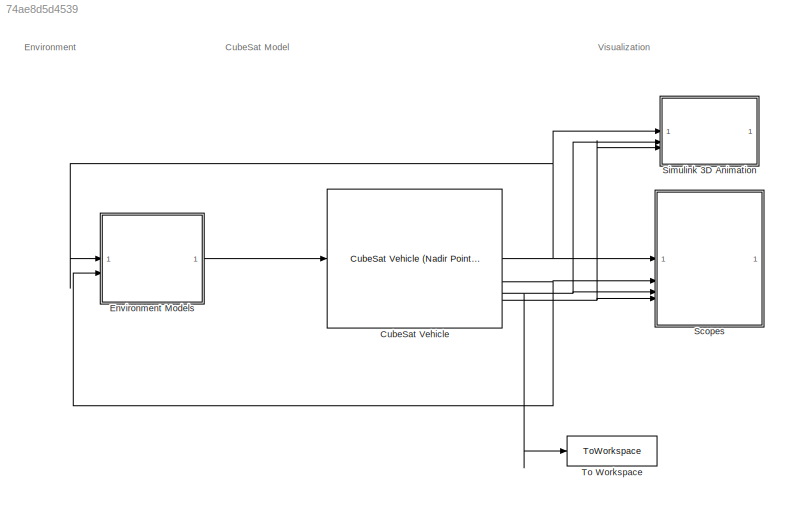
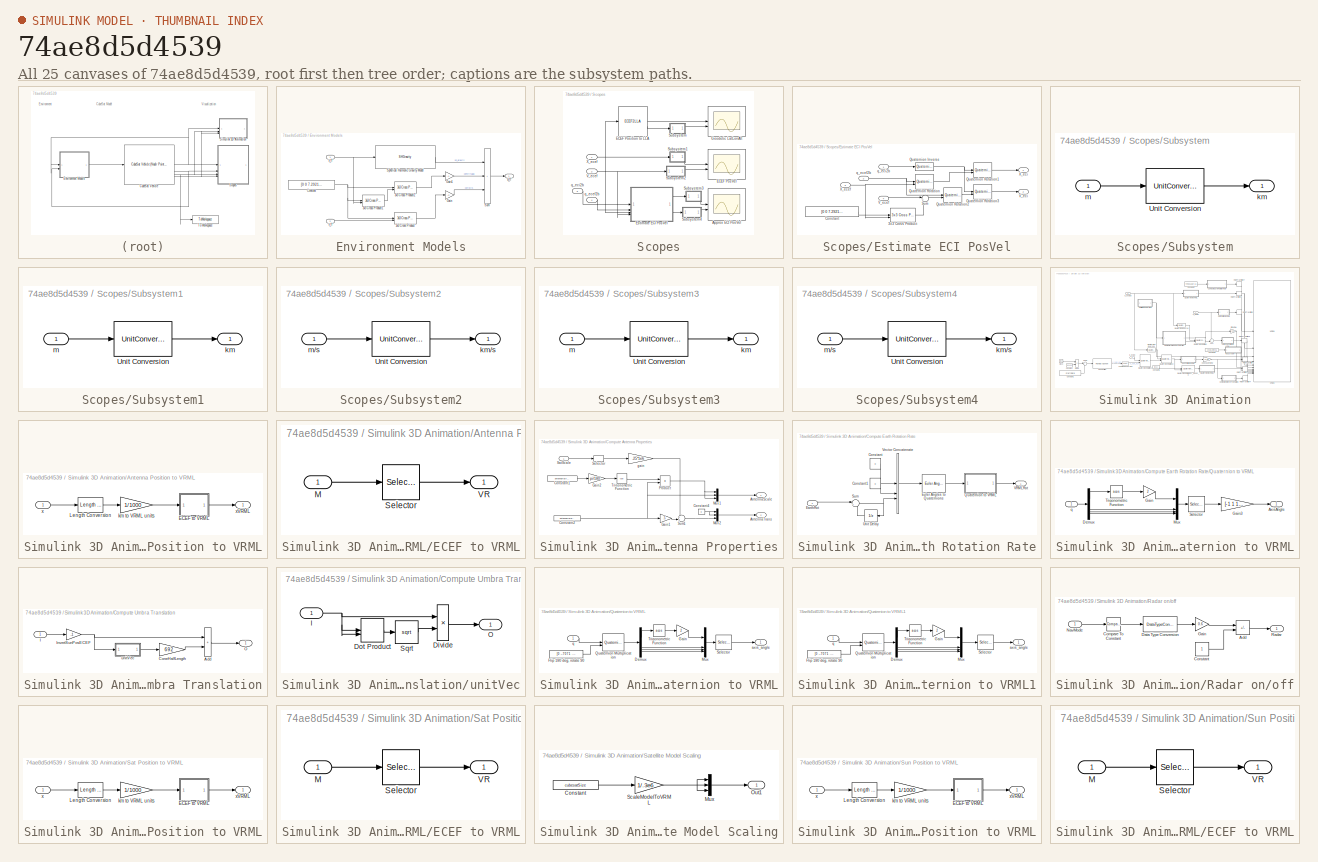
[diagram: thumbnail index - all 25 canvases of the model, root first then tree order]
MODEL slx_74ae8d5d4539
KIND model
CONFIG AbsTol = auto
CONFIG EnableMultiTasking = off
CONFIG FixedStep = auto
CONFIG MaxStep = auto
CONFIG MinStep = auto
CONFIG RelTol = 1e-3
CONFIG SampleTimeConstraint = Unconstrained
CONFIG SolverName = VariableStepAuto
CONFIG StartTime = 0.0
CONFIG StopTime = 10000
BLOCK [Reference] CubeSat Vehicle  REF=aerolibcubesatveh/CubeSat Vehicle
(Nadir Pointing)
  AttributesFormatString = %<pointingMode>
  SourceBlock = aerolibcubesatveh/CubeSat Vehicle\n(Nadir Pointing)
  SourceType = CubeSat Vehicle
BLOCK [SubSystem] Environment Models
BLOCK [Reference] Environment Models/3x3 Cross Product  REF=sharedutil/3x3 Cross Product
  SourceBlock = sharedutil/3x3 Cross Product
  SourceType = CrossProduct
BLOCK [Reference] Environment Models/3x3 Cross Product1  REF=sharedutil/3x3 Cross Product
  SourceBlock = sharedutil/3x3 Cross Product
  SourceType = CrossProduct
BLOCK [Reference] Environment Models/3x3 Cross Product2  REF=sharedutil/3x3 Cross Product
  SourceBlock = sharedutil/3x3 Cross Product
  SourceType = CrossProduct
BLOCK [Constant] Environment Models/Constant
  Value = [0 0 7.292115146706979e-5]'
BLOCK [Gain] Environment Models/Gain
  Gain = -2
BLOCK [Gain] Environment Models/Gain1
  Gain = -1
BLOCK [SHGravity] Environment Models/Spherical Harmonic Gravity Model
  degree = 40
BLOCK [Sum] Environment Models/Sum
  IconShape = rectangular
  Inputs = +++
BLOCK [Outport] Environment Models/a_ff
  PortDimensions = 3
  Unit = m/s^2
BLOCK [Inport] Environment Models/v_ff
  Port = 2
  PortDimensions = 3
  Unit = m/s
BLOCK [Inport] Environment Models/x_ff
  PortDimensions = 3
  Unit = m
BLOCK [SubSystem] Scopes
  VariantControl = visOff
BLOCK [Scope] Scopes/Approx ECI PosVel
  Floating = off
  NumInputPorts = 2
  ScopeSpecificationString = Simulink.scopes.TimeScopeBlockCfg('CurrentConfiguration', extmgr.ConfigurationSet(extmgr.Configuration('Core','General UI',true),extmgr.Configuration('Core','Source UI',true),extmgr.Configuration('Sources','WiredSimulink',true,'DataLoggingVariableName','ScopeData1'),extmgr.Configuration('Visuals','Time Domain',true,'SerializedDisplays',{struct('MinYLimReal','-8477.77229','MaxYLimReal','8481.05539'...<+2040ch>
BLOCK [Scope] Scopes/ECEF PosVel
  Floating = off
  NumInputPorts = 2
  ScopeSpecificationString = Simulink.scopes.TimeScopeBlockCfg('CurrentConfiguration', extmgr.ConfigurationSet(extmgr.Configuration('Core','General UI',true),extmgr.Configuration('Core','Source UI',true),extmgr.Configuration('Sources','WiredSimulink',true,'DataLoggingVariableName','ScopeData2'),extmgr.Configuration('Visuals','Time Domain',true,'SerializedDisplays',{struct('MinYLimReal','-8476.94488','MaxYLimReal','8445.06709'...<+2048ch>
BLOCK [ECEF2LLA] Scopes/ECEF Position to LLA
  R = 6378137
BLOCK [SubSystem] Scopes/Estimate ECI PosVel
BLOCK [Reference] Scopes/Estimate ECI PosVel/3x3 Cross Product  REF=sharedutil/3x3 Cross Product
  SourceBlock = sharedutil/3x3 Cross Product
  SourceType = CrossProduct
BLOCK [Constant] Scopes/Estimate ECI PosVel/Constant
  Value = [0 0 7.292115146706979e-5]'
BLOCK [Reference] Scopes/Estimate ECI PosVel/Quaternion Inverse  REF=aerolibutil/Quaternion
Inverse
  NameLocation = top
  SourceBlock = aerolibutil/Quaternion\nInverse
  SourceType = Quaternion Inverse
BLOCK [Reference] Scopes/Estimate ECI PosVel/Quaternion Rotation  REF=aerolibutil/Quaternion
Rotation
  SourceBlock = aerolibutil/Quaternion\nRotation
  SourceType = Quaternion Rotation
BLOCK [Reference] Scopes/Estimate ECI PosVel/Quaternion Rotation1  REF=aerolibutil/Quaternion
Rotation
  SourceBlock = aerolibutil/Quaternion\nRotation
  SourceType = Quaternion Rotation
BLOCK [Reference] Scopes/Estimate ECI PosVel/Quaternion Rotation2  REF=aerolibutil/Quaternion
Rotation
  SourceBlock = aerolibutil/Quaternion\nRotation
  SourceType = Quaternion Rotation
BLOCK [Reference] Scopes/Estimate ECI PosVel/Quaternion Rotation3  REF=aerolibutil/Quaternion
Rotation
  SourceBlock = aerolibutil/Quaternion\nRotation
  SourceType = Quaternion Rotation
BLOCK [Sum] Scopes/Estimate ECI PosVel/Sum
  Inputs = |++
BLOCK [Inport] Scopes/Estimate ECI PosVel/V_ecef
  Port = 4
BLOCK [Outport] Scopes/Estimate ECI PosVel/V_eci
  Port = 2
  VectorParamsAs1DForOutWhenUnconnected = off
BLOCK [Inport] Scopes/Estimate ECI PosVel/X_ecef
  Port = 3
BLOCK [Outport] Scopes/Estimate ECI PosVel/X_eci
  VectorParamsAs1DForOutWhenUnconnected = off
BLOCK [Inport] Scopes/Estimate ECI PosVel/q_ecef2b
  NameLocation = top
  Port = 2
BLOCK [Inport] Scopes/Estimate ECI PosVel/q_eci2b
BLOCK [Scope] Scopes/Geodetic LatLonAlt
  Floating = off
  NumInputPorts = 2
  ScopeSpecificationString = Simulink.scopes.TimeScopeBlockCfg('CurrentConfiguration', extmgr.ConfigurationSet(extmgr.Configuration('Core','General UI',true),extmgr.Configuration('Core','Source UI',true),extmgr.Configuration('Sources','WiredSimulink',true),extmgr.Configuration('Visuals','Time Domain',true,'SerializedDisplays',{struct('MinYLimReal','-224.99627','MaxYLimReal','224.98953','YLabelReal','\mu \iota (deg)','MinYLimM...<+1990ch>
BLOCK [SubSystem] Scopes/Subsystem
BLOCK [UnitConversion] Scopes/Subsystem/Unit Conversion
BLOCK [Outport] Scopes/Subsystem/km
  Unit = km
  VectorParamsAs1DForOutWhenUnconnected = off
BLOCK [Inport] Scopes/Subsystem/m
  Unit = m
BLOCK [SubSystem] Scopes/Subsystem1
BLOCK [UnitConversion] Scopes/Subsystem1/Unit Conversion
BLOCK [Outport] Scopes/Subsystem1/km
  Unit = km
  VectorParamsAs1DForOutWhenUnconnected = off
BLOCK [Inport] Scopes/Subsystem1/m
  Unit = m
BLOCK [SubSystem] Scopes/Subsystem2
BLOCK [UnitConversion] Scopes/Subsystem2/Unit Conversion
BLOCK [Outport] Scopes/Subsystem2/km//s
  Unit = km/s
  VectorParamsAs1DForOutWhenUnconnected = off
BLOCK [Inport] Scopes/Subsystem2/m//s
  Unit = m/s
BLOCK [SubSystem] Scopes/Subsystem3
BLOCK [UnitConversion] Scopes/Subsystem3/Unit Conversion
BLOCK [Outport] Scopes/Subsystem3/km
  Unit = km
  VectorParamsAs1DForOutWhenUnconnected = off
BLOCK [Inport] Scopes/Subsystem3/m
  Unit = m
BLOCK [SubSystem] Scopes/Subsystem4
BLOCK [UnitConversion] Scopes/Subsystem4/Unit Conversion
BLOCK [Outport] Scopes/Subsystem4/km//s
  Unit = km/s
  VectorParamsAs1DForOutWhenUnconnected = off
BLOCK [Inport] Scopes/Subsystem4/m//s
  Unit = m/s
BLOCK [Inport] Scopes/V_ecef
  Port = 2
BLOCK [Inport] Scopes/X_ecef
BLOCK [Inport] Scopes/q_ecef2b
  Port = 4
BLOCK [Inport] Scopes/q_eci2b
  Port = 3
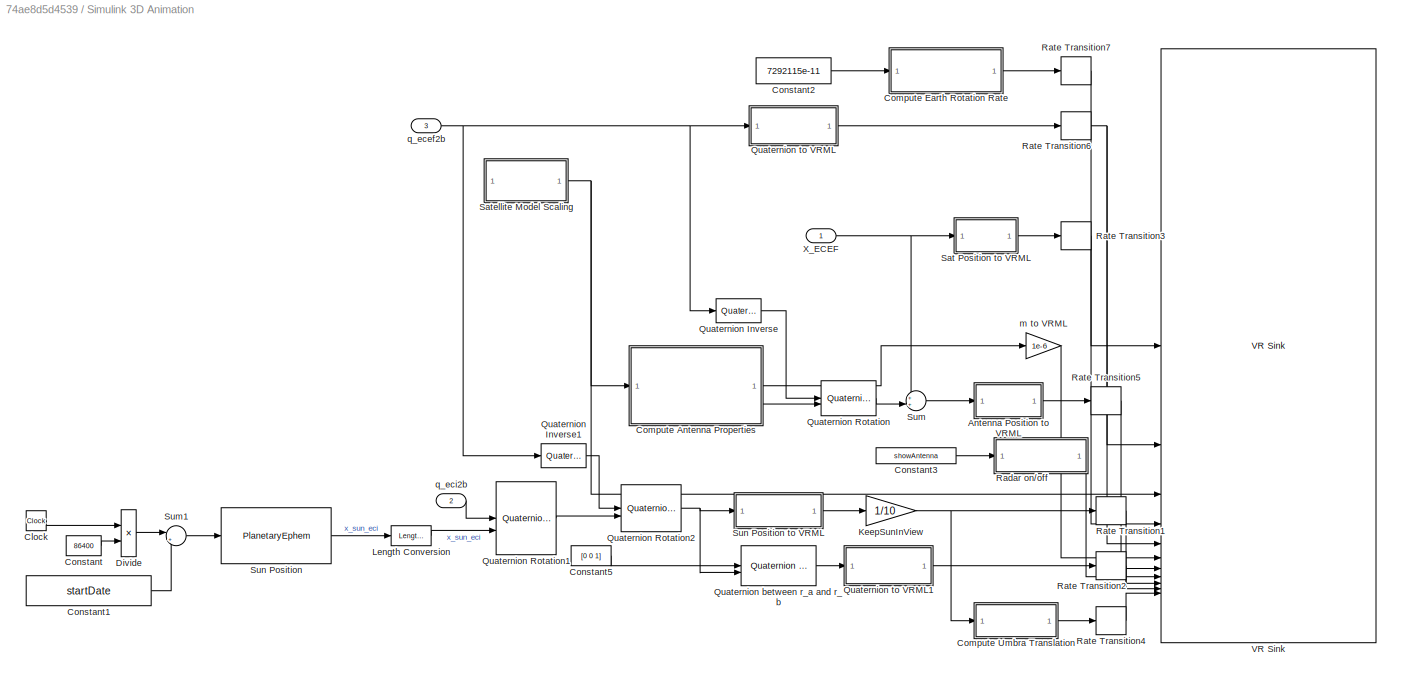
BLOCK [SubSystem] Simulink 3D Animation
  OpenFcn = if ~builtin('license','test','virtual_reality_toolbox')\n    set_param(gcb, 'enableVis', 'off');\nend\nopen_system(gcb,'mask');
BLOCK [SubSystem] Simulink 3D Animation/Antenna Position to VRML
BLOCK [SubSystem] Simulink 3D Animation/Antenna Position to VRML/ECEF to VRML
BLOCK [Inport] Simulink 3D Animation/Antenna Position to VRML/ECEF to VRML/M
  PortDimensions = 3
BLOCK [Selector] Simulink 3D Animation/Antenna Position to VRML/ECEF to VRML/Selector
  IndexOptions = Index vector (dialog)
  Indices = [2 3 1]
  InputPortWidth = 3
  OutputSizes = 1
BLOCK [Outport] Simulink 3D Animation/Antenna Position to VRML/ECEF to VRML/VR
  PortDimensions = 3
  VectorParamsAs1DForOutWhenUnconnected = off
BLOCK [Reference] Simulink 3D Animation/Antenna Position to VRML/Length Conversion  REF=aerolibconvert2/Length Conversion
  SourceBlock = aerolibconvert2/Length Conversion
  SourceType = Length Conversion
BLOCK [Gain] Simulink 3D Animation/Antenna Position to VRML/km to VRML units
  Gain = 1/1000
BLOCK [Inport] Simulink 3D Animation/Antenna Position to VRML/x
BLOCK [Outport] Simulink 3D Animation/Antenna Position to VRML/xVRML
  VectorParamsAs1DForOutWhenUnconnected = off
BLOCK [Clock] Simulink 3D Animation/Clock
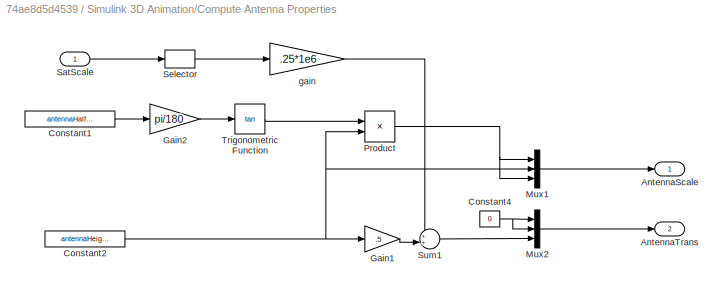
BLOCK [SubSystem] Simulink 3D Animation/Compute Antenna Properties
BLOCK [Outport] Simulink 3D Animation/Compute Antenna Properties/AntennaScale
  VectorParamsAs1DForOutWhenUnconnected = off
BLOCK [Outport] Simulink 3D Animation/Compute Antenna Properties/AntennaTrans
  Port = 2
  VectorParamsAs1DForOutWhenUnconnected = off
BLOCK [Constant] Simulink 3D Animation/Compute Antenna Properties/Constant1
  Value = antennaHalfAngle
BLOCK [Constant] Simulink 3D Animation/Compute Antenna Properties/Constant2
  Value = antennaHeight
BLOCK [Constant] Simulink 3D Animation/Compute Antenna Properties/Constant4
  Value = 0
BLOCK [Gain] Simulink 3D Animation/Compute Antenna Properties/Gain1
  Gain = .5
BLOCK [Gain] Simulink 3D Animation/Compute Antenna Properties/Gain2
  Gain = pi/180
BLOCK [Mux] Simulink 3D Animation/Compute Antenna Properties/Mux1
  DisplayOption = bar
  Inputs = 3
BLOCK [Mux] Simulink 3D Animation/Compute Antenna Properties/Mux2
  DisplayOption = bar
  Inputs = 3
BLOCK [Product] Simulink 3D Animation/Compute Antenna Properties/Product
BLOCK [Inport] Simulink 3D Animation/Compute Antenna Properties/SatScale
BLOCK [Selector] Simulink 3D Animation/Compute Antenna Properties/Selector
  IndexOptions = Index vector (dialog)
  Indices = 1
  InputPortWidth = 3
  OutputSizes = 1
BLOCK [Sum] Simulink 3D Animation/Compute Antenna Properties/Sum1
  Inputs = ++|
BLOCK [Trigonometry] Simulink 3D Animation/Compute Antenna Properties/Trigonometric Function
  Operator = tan
BLOCK [Gain] Simulink 3D Animation/Compute Antenna Properties/gain
  Gain = .25*1e6
BLOCK [SubSystem] Simulink 3D Animation/Compute Earth Rotation Rate
BLOCK [Constant] Simulink 3D Animation/Compute Earth Rotation Rate/Constant
  Value = 0
BLOCK [Constant] Simulink 3D Animation/Compute Earth Rotation Rate/Constant1
  Value = 0
BLOCK [Inport] Simulink 3D Animation/Compute Earth Rotation Rate/EarthRot
BLOCK [Reference] Simulink 3D Animation/Compute Earth Rotation Rate/Euler Angles to Quaternions  REF=aerolibobsolete/Euler Angles to Quaternions
  SourceBlock = aerolibobsolete/Euler Angles to Quaternions
  SourceType = Euler2Quaternion
BLOCK [SubSystem] Simulink 3D Animation/Compute Earth Rotation Rate/Quaternion to VRML
BLOCK [Outport] Simulink 3D Animation/Compute Earth Rotation Rate/Quaternion to VRML/AxisAngle
  VectorParamsAs1DForOutWhenUnconnected = off
BLOCK [Demux] Simulink 3D Animation/Compute Earth Rotation Rate/Quaternion to VRML/Demux
BLOCK [Gain] Simulink 3D Animation/Compute Earth Rotation Rate/Quaternion to VRML/Gain
  Gain = 2
BLOCK [Gain] Simulink 3D Animation/Compute Earth Rotation Rate/Quaternion to VRML/Gain3
  Gain = [-1 1 1 1]
BLOCK [Mux] Simulink 3D Animation/Compute Earth Rotation Rate/Quaternion to VRML/Mux
  DisplayOption = bar
BLOCK [Selector] Simulink 3D Animation/Compute Earth Rotation Rate/Quaternion to VRML/Selector
  IndexOptions = Index vector (dialog)
  Indices = [2 4 3 1]
  InputPortWidth = 4
  OutputSizes = 1
BLOCK [Trigonometry] Simulink 3D Animation/Compute Earth Rotation Rate/Quaternion to VRML/Trigonometric Function
  Operator = acos
BLOCK [Inport] Simulink 3D Animation/Compute Earth Rotation Rate/Quaternion to VRML/q
BLOCK [Sum] Simulink 3D Animation/Compute Earth Rotation Rate/Sum
  Inputs = |++
BLOCK [UnitDelay] Simulink 3D Animation/Compute Earth Rotation Rate/Unit Delay
  HasFrameUpgradeWarning = on
  SampleTime = -1
BLOCK [Outport] Simulink 3D Animation/Compute Earth Rotation Rate/VRMLRot
  VectorParamsAs1DForOutWhenUnconnected = off
BLOCK [Concatenate] Simulink 3D Animation/Compute Earth Rotation Rate/Vector Concatenate
  NumInputs = 3
BLOCK [SubSystem] Simulink 3D Animation/Compute Umbra Translation
BLOCK [Sum] Simulink 3D Animation/Compute Umbra Translation/Add
  IconShape = rectangular
BLOCK [Gain] Simulink 3D Animation/Compute Umbra Translation/ConeHalfLength
  Gain = 692
BLOCK [Inport] Simulink 3D Animation/Compute Umbra Translation/I
BLOCK [Gain] Simulink 3D Animation/Compute Umbra Translation/InvertSunPosECEF
  Gain = -1
BLOCK [Outport] Simulink 3D Animation/Compute Umbra Translation/O
  VectorParamsAs1DForOutWhenUnconnected = off
BLOCK [SubSystem] Simulink 3D Animation/Compute Umbra Translation/unitVec
BLOCK [Product] Simulink 3D Animation/Compute Umbra Translation/unitVec/Divide
  Inputs = */
BLOCK [DotProduct] Simulink 3D Animation/Compute Umbra Translation/unitVec/Dot Product
  OutDataTypeStr = Inherit: Inherit via internal rule
BLOCK [Inport] Simulink 3D Animation/Compute Umbra Translation/unitVec/I
BLOCK [Outport] Simulink 3D Animation/Compute Umbra Translation/unitVec/O
  VectorParamsAs1DForOutWhenUnconnected = off
BLOCK [Sqrt] Simulink 3D Animation/Compute Umbra Translation/unitVec/Sqrt
BLOCK [Constant] Simulink 3D Animation/Constant
  Value = 86400
BLOCK [Constant] Simulink 3D Animation/Constant1
  SampleTime = visSampleTime
  Value = startDate
BLOCK [Constant] Simulink 3D Animation/Constant2
  Value = 7292115e-11
BLOCK [Constant] Simulink 3D Animation/Constant3
  Value = showAntenna
BLOCK [Constant] Simulink 3D Animation/Constant5
  Value = [0 0 1]
BLOCK [Product] Simulink 3D Animation/Divide
  Inputs = */
BLOCK [Gain] Simulink 3D Animation/KeepSunInView
  Gain = 1/10
BLOCK [Reference] Simulink 3D Animation/Length Conversion  REF=aerolibconvert2/Length Conversion
  SourceBlock = aerolibconvert2/Length Conversion
  SourceType = Length Conversion
BLOCK [Reference] Simulink 3D Animation/Quaternion Inverse  REF=aerolibutil/Quaternion
Inverse
  SourceBlock = aerolibutil/Quaternion\nInverse
  SourceType = Quaternion Inverse
BLOCK [Reference] Simulink 3D Animation/Quaternion Inverse1  REF=aerolibutil/Quaternion
Inverse
  SourceBlock = aerolibutil/Quaternion\nInverse
  SourceType = Quaternion Inverse
BLOCK [Reference] Simulink 3D Animation/Quaternion Rotation  REF=aerolibutil/Quaternion
Rotation
  SourceBlock = aerolibutil/Quaternion\nRotation
  SourceType = Quaternion Rotation
BLOCK [Reference] Simulink 3D Animation/Quaternion Rotation1  REF=aerolibutil/Quaternion
Rotation
  SourceBlock = aerolibutil/Quaternion\nRotation
  SourceType = Quaternion Rotation
BLOCK [Reference] Simulink 3D Animation/Quaternion Rotation2  REF=aerolibutil/Quaternion
Rotation
  SourceBlock = aerolibutil/Quaternion\nRotation
  SourceType = Quaternion Rotation
BLOCK [Reference] Simulink 3D Animation/Quaternion between r_a and r_b  REF=aerolibattitudesys/Quaternion between
vectors
  SourceBlock = aerolibattitudesys/Quaternion between\nvectors
  SourceType = Calculate quaternion between vectors
BLOCK [SubSystem] Simulink 3D Animation/Quaternion to VRML
BLOCK [Demux] Simulink 3D Animation/Quaternion to VRML/Demux
BLOCK [Constant] Simulink 3D Animation/Quaternion to VRML/Flip 180 deg, rotate 90
  Value = [0 -.7071 .7071 0]
BLOCK [Gain] Simulink 3D Animation/Quaternion to VRML/Gain
  Gain = 2
BLOCK [Mux] Simulink 3D Animation/Quaternion to VRML/Mux
  DisplayOption = bar
BLOCK [Reference] Simulink 3D Animation/Quaternion to VRML/Quaternion Multiplication  REF=aerolibutil/Quaternion
Multiplication
  SourceBlock = aerolibutil/Quaternion\nMultiplication
  SourceType = Quaternion Multiplication
BLOCK [Selector] Simulink 3D Animation/Quaternion to VRML/Selector
  IndexOptions = Index vector (dialog)
  Indices = [3 4 2 1]
  InputPortWidth = 4
  OutputSizes = 1
BLOCK [Trigonometry] Simulink 3D Animation/Quaternion to VRML/Trigonometric Function
  Operator = acos
BLOCK [Outport] Simulink 3D Animation/Quaternion to VRML/axis_angle
  VectorParamsAs1DForOutWhenUnconnected = off
BLOCK [Inport] Simulink 3D Animation/Quaternion to VRML/q
BLOCK [SubSystem] Simulink 3D Animation/Quaternion to VRML1
BLOCK [Demux] Simulink 3D Animation/Quaternion to VRML1/Demux
BLOCK [Constant] Simulink 3D Animation/Quaternion to VRML1/Flip 180 deg, rotate 90
  Value = [0 -.7071 .7071 0]
BLOCK [Gain] Simulink 3D Animation/Quaternion to VRML1/Gain
  Gain = 2
BLOCK [Mux] Simulink 3D Animation/Quaternion to VRML1/Mux
  DisplayOption = bar
BLOCK [Reference] Simulink 3D Animation/Quaternion to VRML1/Quaternion Multiplication  REF=aerolibutil/Quaternion
Multiplication
  SourceBlock = aerolibutil/Quaternion\nMultiplication
  SourceType = Quaternion Multiplication
BLOCK [Selector] Simulink 3D Animation/Quaternion to VRML1/Selector
  IndexOptions = Index vector (dialog)
  Indices = [3 4 2 1]
  InputPortWidth = 4
  OutputSizes = 1
BLOCK [Trigonometry] Simulink 3D Animation/Quaternion to VRML1/Trigonometric Function
  Operator = acos
BLOCK [Outport] Simulink 3D Animation/Quaternion to VRML1/axis_angle
  VectorParamsAs1DForOutWhenUnconnected = off
BLOCK [Inport] Simulink 3D Animation/Quaternion to VRML1/q
BLOCK [SubSystem] Simulink 3D Animation/Radar on//off
BLOCK [Sum] Simulink 3D Animation/Radar on//off/Add
  IconShape = rectangular
  Inputs = -+
BLOCK [Reference] Simulink 3D Animation/Radar on//off/Compare To Constant  REF=simulink/Logic and Bit
Operations/Compare
To Constant
  SourceBlock = simulink/Logic and Bit\nOperations/Compare\nTo Constant
  SourceType = Compare To Constant
BLOCK [Constant] Simulink 3D Animation/Radar on//off/Constant
BLOCK [DataTypeConversion] Simulink 3D Animation/Radar on//off/Data Type Conversion
  OutDataTypeStr = double
  RndMeth = Floor
  SaturateOnIntegerOverflow = off
BLOCK [Gain] Simulink 3D Animation/Radar on//off/Gain
  Gain = 0.6
BLOCK [Inport] Simulink 3D Animation/Radar on//off/NavMode
BLOCK [Outport] Simulink 3D Animation/Radar on//off/Radar
  VectorParamsAs1DForOutWhenUnconnected = off
BLOCK [RateTransition] Simulink 3D Animation/Rate Transition1
BLOCK [RateTransition] Simulink 3D Animation/Rate Transition2
BLOCK [RateTransition] Simulink 3D Animation/Rate Transition3
BLOCK [RateTransition] Simulink 3D Animation/Rate Transition4
BLOCK [RateTransition] Simulink 3D Animation/Rate Transition5
BLOCK [RateTransition] Simulink 3D Animation/Rate Transition6
BLOCK [RateTransition] Simulink 3D Animation/Rate Transition7
BLOCK [SubSystem] Simulink 3D Animation/Sat Position to VRML
BLOCK [SubSystem] Simulink 3D Animation/Sat Position to VRML/ECEF to VRML
BLOCK [Inport] Simulink 3D Animation/Sat Position to VRML/ECEF to VRML/M
  PortDimensions = 3
BLOCK [Selector] Simulink 3D Animation/Sat Position to VRML/ECEF to VRML/Selector
  IndexOptions = Index vector (dialog)
  Indices = [2 3 1]
  InputPortWidth = 3
  OutputSizes = 1
BLOCK [Outport] Simulink 3D Animation/Sat Position to VRML/ECEF to VRML/VR
  PortDimensions = 3
  VectorParamsAs1DForOutWhenUnconnected = off
BLOCK [Reference] Simulink 3D Animation/Sat Position to VRML/Length Conversion  REF=aerolibconvert2/Length Conversion
  SourceBlock = aerolibconvert2/Length Conversion
  SourceType = Length Conversion
BLOCK [Gain] Simulink 3D Animation/Sat Position to VRML/km to VRML units
  Gain = 1/1000
BLOCK [Inport] Simulink 3D Animation/Sat Position to VRML/x
BLOCK [Outport] Simulink 3D Animation/Sat Position to VRML/xVRML
  VectorParamsAs1DForOutWhenUnconnected = off
BLOCK [SubSystem] Simulink 3D Animation/Satellite Model Scaling
BLOCK [Constant] Simulink 3D Animation/Satellite Model Scaling/Constant
  Value = cubesatSize
BLOCK [Mux] Simulink 3D Animation/Satellite Model Scaling/Mux
  DisplayOption = bar
  Inputs = 3
BLOCK [Outport] Simulink 3D Animation/Satellite Model Scaling/Out1
  VectorParamsAs1DForOutWhenUnconnected = off
BLOCK [Gain] Simulink 3D Animation/Satellite Model Scaling/ScaleModelToVRML
  Gain = 1/.3e6
BLOCK [Sum] Simulink 3D Animation/Sum
  Inputs = ++|
BLOCK [Sum] Simulink 3D Animation/Sum1
  Inputs = |++
BLOCK [PlanetaryEphem] Simulink 3D Animation/Sun Position
  ephemerisModel = DE421
  outputVelocity = off
  target = Sun
BLOCK [SubSystem] Simulink 3D Animation/Sun Position to VRML
BLOCK [SubSystem] Simulink 3D Animation/Sun Position to VRML/ECEF to VRML
BLOCK [Inport] Simulink 3D Animation/Sun Position to VRML/ECEF to VRML/M
  PortDimensions = 3
BLOCK [Selector] Simulink 3D Animation/Sun Position to VRML/ECEF to VRML/Selector
  IndexOptions = Index vector (dialog)
  Indices = [2 3 1]
  InputPortWidth = 3
  OutputSizes = 1
BLOCK [Outport] Simulink 3D Animation/Sun Position to VRML/ECEF to VRML/VR
  PortDimensions = 3
  VectorParamsAs1DForOutWhenUnconnected = off
BLOCK [Reference] Simulink 3D Animation/Sun Position to VRML/Length Conversion  REF=aerolibconvert2/Length Conversion
  SourceBlock = aerolibconvert2/Length Conversion
  SourceType = Length Conversion
BLOCK [Gain] Simulink 3D Animation/Sun Position to VRML/km to VRML units
  Gain = 1/1000
BLOCK [Inport] Simulink 3D Animation/Sun Position to VRML/x
BLOCK [Outport] Simulink 3D Animation/Sun Position to VRML/xVRML
  VectorParamsAs1DForOutWhenUnconnected = off
BLOCK [Reference] Simulink 3D Animation/VR Sink  REF=vrlib/VR Sink
  InstantiateOnLoad = on
  SourceBlock = vrlib/VR Sink
  SourceType = Virtual Reality Sink
BLOCK [Inport] Simulink 3D Animation/X_ECEF
BLOCK [Gain] Simulink 3D Animation/m to VRML
  Gain = 1e-6
BLOCK [Inport] Simulink 3D Animation/q_ecef2b
  Port = 3
BLOCK [Inport] Simulink 3D Animation/q_eci2b
  Port = 2
BLOCK [ToWorkspace] To Workspace
  FixptAsFi = on
  MaxDataPoints = inf
  SampleTime = 1
  SaveFormat = Timeseries
  VariableName = q_ECI2Body
ANNOTATION (root): CubeSat Model
ANNOTATION (root): Environment
ANNOTATION (root): Visualization
NET CubeSat Vehicle:1 -> Environment Models:1, Scopes:1, Simulink 3D Animation:1
NET CubeSat Vehicle:2 -> Environment Models:2, Scopes:2
NET CubeSat Vehicle:3 -> Scopes:3, Simulink 3D Animation:2, To Workspace:1
NET CubeSat Vehicle:4 -> Scopes:4, Simulink 3D Animation:3
LINE Environment Models/3x3 Cross Product1:1 -> Environment Models/3x3 Cross Product2:2
LINE Environment Models/3x3 Cross Product2:1 -> Environment Models/Gain1:1
LINE Environment Models/3x3 Cross Product:1 -> Environment Models/Gain:1
NET Environment Models/Constant:1 -> Environment Models/3x3 Cross Product1:1, Environment Models/3x3 Cross Product2:1, Environment Models/3x3 Cross Product:1
LINE Environment Models/Gain1:1 -> Environment Models/Sum:2
LINE Environment Models/Gain:1 -> Environment Models/Sum:3
LINE Environment Models/Spherical Harmonic Gravity Model:1 -> Environment Models/Sum:1
LINE Environment Models/Sum:1 -> Environment Models/a_ff:1
LINE Environment Models/v_ff:1 -> Environment Models/3x3 Cross Product:2
NET Environment Models/x_ff:1 -> Environment Models/3x3 Cross Product1:2, Environment Models/Spherical Harmonic Gravity Model:1
LINE Environment Models:1 -> CubeSat Vehicle:1
LINE Scopes/ECEF Position to LLA:1 -> Scopes/Geodetic LatLonAlt:1
LINE Scopes/ECEF Position to LLA:2 -> Scopes/Subsystem:1
LINE Scopes/Estimate ECI PosVel/3x3 Cross Product:1 -> Scopes/Estimate ECI PosVel/Sum:2
LINE Scopes/Estimate ECI PosVel/Constant:1 -> Scopes/Estimate ECI PosVel/3x3 Cross Product:1
NET Scopes/Estimate ECI PosVel/Quaternion Inverse:1 -> Scopes/Estimate ECI PosVel/Quaternion Rotation1:1, Scopes/Estimate ECI PosVel/Quaternion Rotation3:1
LINE Scopes/Estimate ECI PosVel/Quaternion Rotation1:1 -> Scopes/Estimate ECI PosVel/X_eci:1
LINE Scopes/Estimate ECI PosVel/Quaternion Rotation2:1 -> Scopes/Estimate ECI PosVel/Quaternion Rotation3:2
LINE Scopes/Estimate ECI PosVel/Quaternion Rotation3:1 -> Scopes/Estimate ECI PosVel/V_eci:1
LINE Scopes/Estimate ECI PosVel/Quaternion Rotation:1 -> Scopes/Estimate ECI PosVel/Quaternion Rotation1:2
LINE Scopes/Estimate ECI PosVel/Sum:1 -> Scopes/Estimate ECI PosVel/Quaternion Rotation2:2
LINE Scopes/Estimate ECI PosVel/V_ecef:1 -> Scopes/Estimate ECI PosVel/Sum:1
NET Scopes/Estimate ECI PosVel/X_ecef:1 -> Scopes/Estimate ECI PosVel/3x3 Cross Product:2, Scopes/Estimate ECI PosVel/Quaternion Rotation:2
NET Scopes/Estimate ECI PosVel/q_ecef2b:1 -> Scopes/Estimate ECI PosVel/Quaternion Rotation2:1, Scopes/Estimate ECI PosVel/Quaternion Rotation:1
LINE Scopes/Estimate ECI PosVel/q_eci2b:1 -> Scopes/Estimate ECI PosVel/Quaternion Inverse:1
LINE Scopes/Estimate ECI PosVel:1 -> Scopes/Subsystem3:1
LINE Scopes/Estimate ECI PosVel:2 -> Scopes/Subsystem4:1
LINE Scopes/Subsystem/Unit Conversion:1 -> Scopes/Subsystem/km:1
LINE Scopes/Subsystem/m:1 -> Scopes/Subsystem/Unit Conversion:1
LINE Scopes/Subsystem1/Unit Conversion:1 -> Scopes/Subsystem1/km:1
LINE Scopes/Subsystem1/m:1 -> Scopes/Subsystem1/Unit Conversion:1
LINE Scopes/Subsystem1:1 -> Scopes/ECEF PosVel:1
LINE Scopes/Subsystem2/Unit Conversion:1 -> Scopes/Subsystem2/km//s:1
LINE Scopes/Subsystem2/m//s:1 -> Scopes/Subsystem2/Unit Conversion:1
LINE Scopes/Subsystem2:1 -> Scopes/ECEF PosVel:2
LINE Scopes/Subsystem3/Unit Conversion:1 -> Scopes/Subsystem3/km:1
LINE Scopes/Subsystem3/m:1 -> Scopes/Subsystem3/Unit Conversion:1
LINE Scopes/Subsystem3:1 -> Scopes/Approx ECI PosVel:1
LINE Scopes/Subsystem4/Unit Conversion:1 -> Scopes/Subsystem4/km//s:1
LINE Scopes/Subsystem4/m//s:1 -> Scopes/Subsystem4/Unit Conversion:1
LINE Scopes/Subsystem4:1 -> Scopes/Approx ECI PosVel:2
LINE Scopes/Subsystem:1 -> Scopes/Geodetic LatLonAlt:2
NET Scopes/V_ecef:1 -> Scopes/Estimate ECI PosVel:4, Scopes/Subsystem2:1
NET Scopes/X_ecef:1 -> Scopes/ECEF Position to LLA:1, Scopes/Estimate ECI PosVel:3, Scopes/Subsystem1:1
LINE Scopes/q_ecef2b:1 -> Scopes/Estimate ECI PosVel:2
LINE Scopes/q_eci2b:1 -> Scopes/Estimate ECI PosVel:1
LINE Simulink 3D Animation/Antenna Position to VRML/ECEF to VRML/M:1 -> Simulink 3D Animation/Antenna Position to VRML/ECEF to VRML/Selector:1
LINE Simulink 3D Animation/Antenna Position to VRML/ECEF to VRML/Selector:1 -> Simulink 3D Animation/Antenna Position to VRML/ECEF to VRML/VR:1
LINE Simulink 3D Animation/Antenna Position to VRML/ECEF to VRML:1 -> Simulink 3D Animation/Antenna Position to VRML/xVRML:1
LINE Simulink 3D Animation/Antenna Position to VRML/Length Conversion:1 -> Simulink 3D Animation/Antenna Position to VRML/km to VRML units:1
LINE Simulink 3D Animation/Antenna Position to VRML/km to VRML units:1 -> Simulink 3D Animation/Antenna Position to VRML/ECEF to VRML:1
LINE Simulink 3D Animation/Antenna Position to VRML/x:1 -> Simulink 3D Animation/Antenna Position to VRML/Length Conversion:1
LINE Simulink 3D Animation/Antenna Position to VRML:1 -> Simulink 3D Animation/Rate Transition5:1
LINE Simulink 3D Animation/Clock:1 -> Simulink 3D Animation/Divide:1
LINE Simulink 3D Animation/Compute Antenna Properties/Constant1:1 -> Simulink 3D Animation/Compute Antenna Properties/Gain2:1
NET Simulink 3D Animation/Compute Antenna Properties/Constant2:1 -> Simulink 3D Animation/Compute Antenna Properties/Gain1:1, Simulink 3D Animation/Compute Antenna Properties/Mux1:2, Simulink 3D Animation/Compute Antenna Properties/Product:2
NET Simulink 3D Animation/Compute Antenna Properties/Constant4:1 -> Simulink 3D Animation/Compute Antenna Properties/Mux2:1, Simulink 3D Animation/Compute Antenna Properties/Mux2:2
LINE Simulink 3D Animation/Compute Antenna Properties/Gain1:1 -> Simulink 3D Animation/Compute Antenna Properties/Sum1:2
LINE Simulink 3D Animation/Compute Antenna Properties/Gain2:1 -> Simulink 3D Animation/Compute Antenna Properties/Trigonometric Function:1
LINE Simulink 3D Animation/Compute Antenna Properties/Mux1:1 -> Simulink 3D Animation/Compute Antenna Properties/AntennaScale:1
LINE Simulink 3D Animation/Compute Antenna Properties/Mux2:1 -> Simulink 3D Animation/Compute Antenna Properties/AntennaTrans:1
NET Simulink 3D Animation/Compute Antenna Properties/Product:1 -> Simulink 3D Animation/Compute Antenna Properties/Mux1:1, Simulink 3D Animation/Compute Antenna Properties/Mux1:3
LINE Simulink 3D Animation/Compute Antenna Properties/SatScale:1 -> Simulink 3D Animation/Compute Antenna Properties/Selector:1
LINE Simulink 3D Animation/Compute Antenna Properties/Selector:1 -> Simulink 3D Animation/Compute Antenna Properties/gain:1
LINE Simulink 3D Animation/Compute Antenna Properties/Sum1:1 -> Simulink 3D Animation/Compute Antenna Properties/Mux2:3
LINE Simulink 3D Animation/Compute Antenna Properties/Trigonometric Function:1 -> Simulink 3D Animation/Compute Antenna Properties/Product:1
LINE Simulink 3D Animation/Compute Antenna Properties/gain:1 -> Simulink 3D Animation/Compute Antenna Properties/Sum1:1
LINE Simulink 3D Animation/Compute Antenna Properties:1 -> Simulink 3D Animation/m to VRML:1
LINE Simulink 3D Animation/Compute Antenna Properties:2 -> Simulink 3D Animation/Quaternion Rotation:2
LINE Simulink 3D Animation/Compute Earth Rotation Rate/Constant1:1 -> Simulink 3D Animation/Compute Earth Rotation Rate/Vector Concatenate:2
LINE Simulink 3D Animation/Compute Earth Rotation Rate/Constant:1 -> Simulink 3D Animation/Compute Earth Rotation Rate/Vector Concatenate:1
LINE Simulink 3D Animation/Compute Earth Rotation Rate/EarthRot:1 -> Simulink 3D Animation/Compute Earth Rotation Rate/Sum:1
LINE Simulink 3D Animation/Compute Earth Rotation Rate/Euler Angles to Quaternions:1 -> Simulink 3D Animation/Compute Earth Rotation Rate/Quaternion to VRML:1
LINE Simulink 3D Animation/Compute Earth Rotation Rate/Quaternion to VRML/Demux:1 -> Simulink 3D Animation/Compute Earth Rotation Rate/Quaternion to VRML/Trigonometric Function:1
LINE Simulink 3D Animation/Compute Earth Rotation Rate/Quaternion to VRML/Demux:2 -> Simulink 3D Animation/Compute Earth Rotation Rate/Quaternion to VRML/Mux:2
LINE Simulink 3D Animation/Compute Earth Rotation Rate/Quaternion to VRML/Demux:3 -> Simulink 3D Animation/Compute Earth Rotation Rate/Quaternion to VRML/Mux:3
LINE Simulink 3D Animation/Compute Earth Rotation Rate/Quaternion to VRML/Demux:4 -> Simulink 3D Animation/Compute Earth Rotation Rate/Quaternion to VRML/Mux:4
LINE Simulink 3D Animation/Compute Earth Rotation Rate/Quaternion to VRML/Gain3:1 -> Simulink 3D Animation/Compute Earth Rotation Rate/Quaternion to VRML/AxisAngle:1
LINE Simulink 3D Animation/Compute Earth Rotation Rate/Quaternion to VRML/Gain:1 -> Simulink 3D Animation/Compute Earth Rotation Rate/Quaternion to VRML/Mux:1
LINE Simulink 3D Animation/Compute Earth Rotation Rate/Quaternion to VRML/Mux:1 -> Simulink 3D Animation/Compute Earth Rotation Rate/Quaternion to VRML/Selector:1
LINE Simulink 3D Animation/Compute Earth Rotation Rate/Quaternion to VRML/Selector:1 -> Simulink 3D Animation/Compute Earth Rotation Rate/Quaternion to VRML/Gain3:1
LINE Simulink 3D Animation/Compute Earth Rotation Rate/Quaternion to VRML/Trigonometric Function:1 -> Simulink 3D Animation/Compute Earth Rotation Rate/Quaternion to VRML/Gain:1
LINE Simulink 3D Animation/Compute Earth Rotation Rate/Quaternion to VRML/q:1 -> Simulink 3D Animation/Compute Earth Rotation Rate/Quaternion to VRML/Demux:1
LINE Simulink 3D Animation/Compute Earth Rotation Rate/Quaternion to VRML:1 -> Simulink 3D Animation/Compute Earth Rotation Rate/VRMLRot:1
NET Simulink 3D Animation/Compute Earth Rotation Rate/Sum:1 -> Simulink 3D Animation/Compute Earth Rotation Rate/Unit Delay:1, Simulink 3D Animation/Compute Earth Rotation Rate/Vector Concatenate:3
LINE Simulink 3D Animation/Compute Earth Rotation Rate/Unit Delay:1 -> Simulink 3D Animation/Compute Earth Rotation Rate/Sum:2
LINE Simulink 3D Animation/Compute Earth Rotation Rate/Vector Concatenate:1 -> Simulink 3D Animation/Compute Earth Rotation Rate/Euler Angles to Quaternions:1
LINE Simulink 3D Animation/Compute Earth Rotation Rate:1 -> Simulink 3D Animation/Rate Transition7:1
LINE Simulink 3D Animation/Compute Umbra Translation/Add:1 -> Simulink 3D Animation/Compute Umbra Translation/O:1
LINE Simulink 3D Animation/Compute Umbra Translation/ConeHalfLength:1 -> Simulink 3D Animation/Compute Umbra Translation/Add:2
LINE Simulink 3D Animation/Compute Umbra Translation/I:1 -> Simulink 3D Animation/Compute Umbra Translation/InvertSunPosECEF:1
NET Simulink 3D Animation/Compute Umbra Translation/InvertSunPosECEF:1 -> Simulink 3D Animation/Compute Umbra Translation/Add:1, Simulink 3D Animation/Compute Umbra Translation/unitVec:1
LINE Simulink 3D Animation/Compute Umbra Translation/unitVec/Divide:1 -> Simulink 3D Animation/Compute Umbra Translation/unitVec/O:1
LINE Simulink 3D Animation/Compute Umbra Translation/unitVec/Dot Product:1 -> Simulink 3D Animation/Compute Umbra Translation/unitVec/Sqrt:1
NET Simulink 3D Animation/Compute Umbra Translation/unitVec/I:1 -> Simulink 3D Animation/Compute Umbra Translation/unitVec/Divide:1, Simulink 3D Animation/Compute Umbra Translation/unitVec/Dot Product:1, Simulink 3D Animation/Compute Umbra Translation/unitVec/Dot Product:2
LINE Simulink 3D Animation/Compute Umbra Translation/unitVec/Sqrt:1 -> Simulink 3D Animation/Compute Umbra Translation/unitVec/Divide:2
LINE Simulink 3D Animation/Compute Umbra Translation/unitVec:1 -> Simulink 3D Animation/Compute Umbra Translation/ConeHalfLength:1
LINE Simulink 3D Animation/Compute Umbra Translation:1 -> Simulink 3D Animation/Rate Transition4:1
LINE Simulink 3D Animation/Constant1:1 -> Simulink 3D Animation/Sum1:2
LINE Simulink 3D Animation/Constant2:1 -> Simulink 3D Animation/Compute Earth Rotation Rate:1
LINE Simulink 3D Animation/Constant3:1 -> Simulink 3D Animation/Radar on//off:1
LINE Simulink 3D Animation/Constant5:1 -> Simulink 3D Animation/Quaternion between r_a and r_b:1
LINE Simulink 3D Animation/Constant:1 -> Simulink 3D Animation/Divide:2
LINE Simulink 3D Animation/Divide:1 -> Simulink 3D Animation/Sum1:1
NET Simulink 3D Animation/KeepSunInView:1 -> Simulink 3D Animation/Compute Umbra Translation:1, Simulink 3D Animation/Rate Transition1:1
LINE Simulink 3D Animation/Length Conversion:1 -> Simulink 3D Animation/Quaternion Rotation1:2
LINE Simulink 3D Animation/Quaternion Inverse1:1 -> Simulink 3D Animation/Quaternion Rotation2:1
LINE Simulink 3D Animation/Quaternion Inverse:1 -> Simulink 3D Animation/Quaternion Rotation:1
LINE Simulink 3D Animation/Quaternion Rotation1:1 -> Simulink 3D Animation/Quaternion Rotation2:2
NET Simulink 3D Animation/Quaternion Rotation2:1 -> Simulink 3D Animation/Quaternion between r_a and r_b:2, Simulink 3D Animation/Sun Position to VRML:1
LINE Simulink 3D Animation/Quaternion Rotation:1 -> Simulink 3D Animation/Sum:2
LINE Simulink 3D Animation/Quaternion between r_a and r_b:1 -> Simulink 3D Animation/Quaternion to VRML1:1
LINE Simulink 3D Animation/Quaternion to VRML/Demux:1 -> Simulink 3D Animation/Quaternion to VRML/Trigonometric Function:1
LINE Simulink 3D Animation/Quaternion to VRML/Demux:2 -> Simulink 3D Animation/Quaternion to VRML/Mux:2
LINE Simulink 3D Animation/Quaternion to VRML/Demux:3 -> Simulink 3D Animation/Quaternion to VRML/Mux:3
LINE Simulink 3D Animation/Quaternion to VRML/Demux:4 -> Simulink 3D Animation/Quaternion to VRML/Mux:4
LINE Simulink 3D Animation/Quaternion to VRML/Flip 180 deg, rotate 90:1 -> Simulink 3D Animation/Quaternion to VRML/Quaternion Multiplication:2
LINE Simulink 3D Animation/Quaternion to VRML/Gain:1 -> Simulink 3D Animation/Quaternion to VRML/Mux:1
LINE Simulink 3D Animation/Quaternion to VRML/Mux:1 -> Simulink 3D Animation/Quaternion to VRML/Selector:1
LINE Simulink 3D Animation/Quaternion to VRML/Quaternion Multiplication:1 -> Simulink 3D Animation/Quaternion to VRML/Demux:1
LINE Simulink 3D Animation/Quaternion to VRML/Selector:1 -> Simulink 3D Animation/Quaternion to VRML/axis_angle:1
LINE Simulink 3D Animation/Quaternion to VRML/Trigonometric Function:1 -> Simulink 3D Animation/Quaternion to VRML/Gain:1
LINE Simulink 3D Animation/Quaternion to VRML/q:1 -> Simulink 3D Animation/Quaternion to VRML/Quaternion Multiplication:1
LINE Simulink 3D Animation/Quaternion to VRML1/Demux:1 -> Simulink 3D Animation/Quaternion to VRML1/Trigonometric Function:1
LINE Simulink 3D Animation/Quaternion to VRML1/Demux:2 -> Simulink 3D Animation/Quaternion to VRML1/Mux:2
LINE Simulink 3D Animation/Quaternion to VRML1/Demux:3 -> Simulink 3D Animation/Quaternion to VRML1/Mux:3
LINE Simulink 3D Animation/Quaternion to VRML1/Demux:4 -> Simulink 3D Animation/Quaternion to VRML1/Mux:4
LINE Simulink 3D Animation/Quaternion to VRML1/Flip 180 deg, rotate 90:1 -> Simulink 3D Animation/Quaternion to VRML1/Quaternion Multiplication:2
LINE Simulink 3D Animation/Quaternion to VRML1/Gain:1 -> Simulink 3D Animation/Quaternion to VRML1/Mux:1
LINE Simulink 3D Animation/Quaternion to VRML1/Mux:1 -> Simulink 3D Animation/Quaternion to VRML1/Selector:1
LINE Simulink 3D Animation/Quaternion to VRML1/Quaternion Multiplication:1 -> Simulink 3D Animation/Quaternion to VRML1/Demux:1
LINE Simulink 3D Animation/Quaternion to VRML1/Selector:1 -> Simulink 3D Animation/Quaternion to VRML1/axis_angle:1
LINE Simulink 3D Animation/Quaternion to VRML1/Trigonometric Function:1 -> Simulink 3D Animation/Quaternion to VRML1/Gain:1
LINE Simulink 3D Animation/Quaternion to VRML1/q:1 -> Simulink 3D Animation/Quaternion to VRML1/Quaternion Multiplication:1
LINE Simulink 3D Animation/Quaternion to VRML1:1 -> Simulink 3D Animation/Rate Transition2:1
LINE Simulink 3D Animation/Quaternion to VRML:1 -> Simulink 3D Animation/Rate Transition6:1
LINE Simulink 3D Animation/Radar on//off/Add:1 -> Simulink 3D Animation/Radar on//off/Radar:1
LINE Simulink 3D Animation/Radar on//off/Compare To Constant:1 -> Simulink 3D Animation/Radar on//off/Data Type Conversion:1
LINE Simulink 3D Animation/Radar on//off/Constant:1 -> Simulink 3D Animation/Radar on//off/Add:2
LINE Simulink 3D Animation/Radar on//off/Data Type Conversion:1 -> Simulink 3D Animation/Radar on//off/Gain:1
LINE Simulink 3D Animation/Radar on//off/Gain:1 -> Simulink 3D Animation/Radar on//off/Add:1
LINE Simulink 3D Animation/Radar on//off/NavMode:1 -> Simulink 3D Animation/Radar on//off/Compare To Constant:1
LINE Simulink 3D Animation/Radar on//off:1 -> Simulink 3D Animation/VR Sink:8
LINE Simulink 3D Animation/Rate Transition1:1 -> Simulink 3D Animation/VR Sink:9
LINE Simulink 3D Animation/Rate Transition2:1 -> Simulink 3D Animation/VR Sink:10
LINE Simulink 3D Animation/Rate Transition3:1 -> Simulink 3D Animation/VR Sink:4
LINE Simulink 3D Animation/Rate Transition4:1 -> Simulink 3D Animation/VR Sink:11
LINE Simulink 3D Animation/Rate Transition5:1 -> Simulink 3D Animation/VR Sink:7
NET Simulink 3D Animation/Rate Transition6:1 -> Simulink 3D Animation/VR Sink:2, Simulink 3D Animation/VR Sink:5
LINE Simulink 3D Animation/Rate Transition7:1 -> Simulink 3D Animation/VR Sink:1
LINE Simulink 3D Animation/Sat Position to VRML/ECEF to VRML/M:1 -> Simulink 3D Animation/Sat Position to VRML/ECEF to VRML/Selector:1
LINE Simulink 3D Animation/Sat Position to VRML/ECEF to VRML/Selector:1 -> Simulink 3D Animation/Sat Position to VRML/ECEF to VRML/VR:1
LINE Simulink 3D Animation/Sat Position to VRML/ECEF to VRML:1 -> Simulink 3D Animation/Sat Position to VRML/xVRML:1
LINE Simulink 3D Animation/Sat Position to VRML/Length Conversion:1 -> Simulink 3D Animation/Sat Position to VRML/km to VRML units:1
LINE Simulink 3D Animation/Sat Position to VRML/km to VRML units:1 -> Simulink 3D Animation/Sat Position to VRML/ECEF to VRML:1
LINE Simulink 3D Animation/Sat Position to VRML/x:1 -> Simulink 3D Animation/Sat Position to VRML/Length Conversion:1
LINE Simulink 3D Animation/Sat Position to VRML:1 -> Simulink 3D Animation/Rate Transition3:1
LINE Simulink 3D Animation/Satellite Model Scaling/Constant:1 -> Simulink 3D Animation/Satellite Model Scaling/ScaleModelToVRML:1
LINE Simulink 3D Animation/Satellite Model Scaling/Mux:1 -> Simulink 3D Animation/Satellite Model Scaling/Out1:1
NET Simulink 3D Animation/Satellite Model Scaling/ScaleModelToVRML:1 -> Simulink 3D Animation/Satellite Model Scaling/Mux:1, Simulink 3D Animation/Satellite Model Scaling/Mux:2, Simulink 3D Animation/Satellite Model Scaling/Mux:3
NET Simulink 3D Animation/Satellite Model Scaling:1 -> Simulink 3D Animation/Compute Antenna Properties:1, Simulink 3D Animation/VR Sink:3
LINE Simulink 3D Animation/Sum1:1 -> Simulink 3D Animation/Sun Position:1
LINE Simulink 3D Animation/Sum:1 -> Simulink 3D Animation/Antenna Position to VRML:1
LINE Simulink 3D Animation/Sun Position to VRML/ECEF to VRML/M:1 -> Simulink 3D Animation/Sun Position to VRML/ECEF to VRML/Selector:1
LINE Simulink 3D Animation/Sun Position to VRML/ECEF to VRML/Selector:1 -> Simulink 3D Animation/Sun Position to VRML/ECEF to VRML/VR:1
LINE Simulink 3D Animation/Sun Position to VRML/ECEF to VRML:1 -> Simulink 3D Animation/Sun Position to VRML/xVRML:1
LINE Simulink 3D Animation/Sun Position to VRML/Length Conversion:1 -> Simulink 3D Animation/Sun Position to VRML/km to VRML units:1
LINE Simulink 3D Animation/Sun Position to VRML/km to VRML units:1 -> Simulink 3D Animation/Sun Position to VRML/ECEF to VRML:1
LINE Simulink 3D Animation/Sun Position to VRML/x:1 -> Simulink 3D Animation/Sun Position to VRML/Length Conversion:1
LINE Simulink 3D Animation/Sun Position to VRML:1 -> Simulink 3D Animation/KeepSunInView:1
LINE Simulink 3D Animation/Sun Position:1 -> Simulink 3D Animation/Length Conversion:1
NET Simulink 3D Animation/X_ECEF:1 -> Simulink 3D Animation/Sat Position to VRML:1, Simulink 3D Animation/Sum:1
LINE Simulink 3D Animation/m to VRML:1 -> Simulink 3D Animation/VR Sink:6
NET Simulink 3D Animation/q_ecef2b:1 -> Simulink 3D Animation/Quaternion Inverse1:1, Simulink 3D Animation/Quaternion Inverse:1, Simulink 3D Animation/Quaternion to VRML:1
LINE Simulink 3D Animation/q_eci2b:1 -> Simulink 3D Animation/Quaternion Rotation1:1
note: NET lines group one-source signal fan-out (src -> all destinations, sorted); 1:1 wires keep LINE
